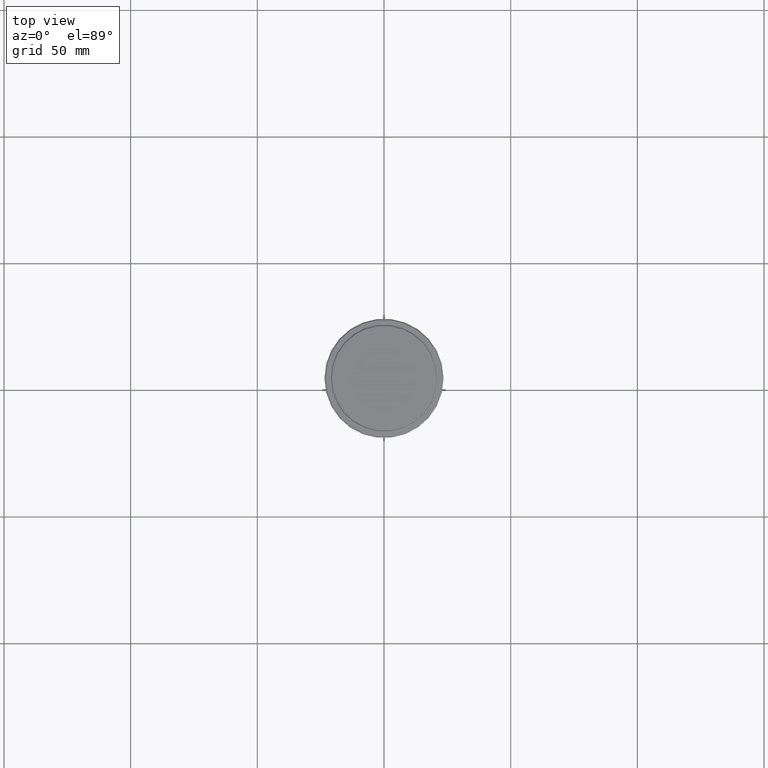
[diagram: clean part render]
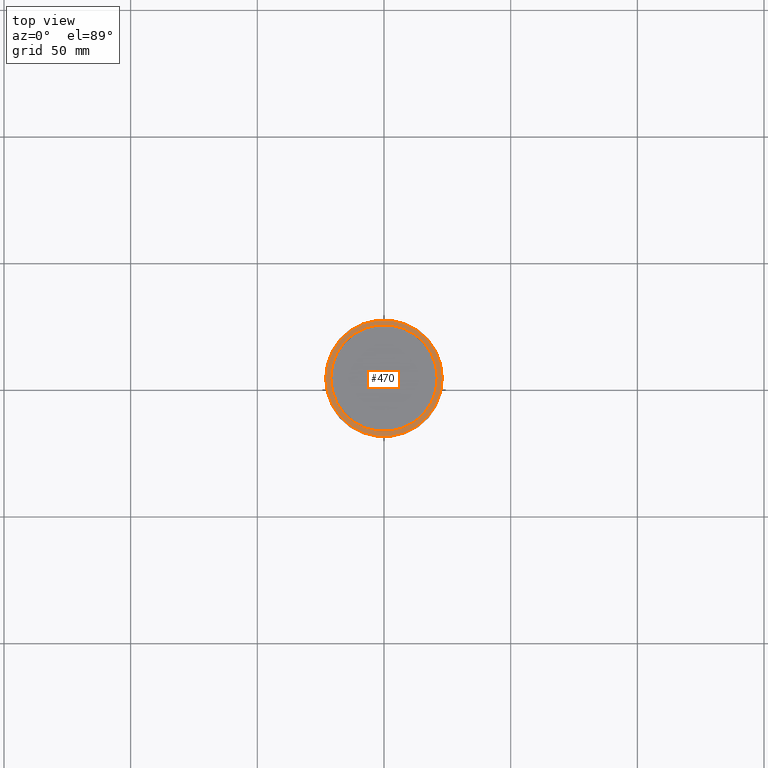
[diagram: same view with one face highlighted and labeled with its STEP entity id]
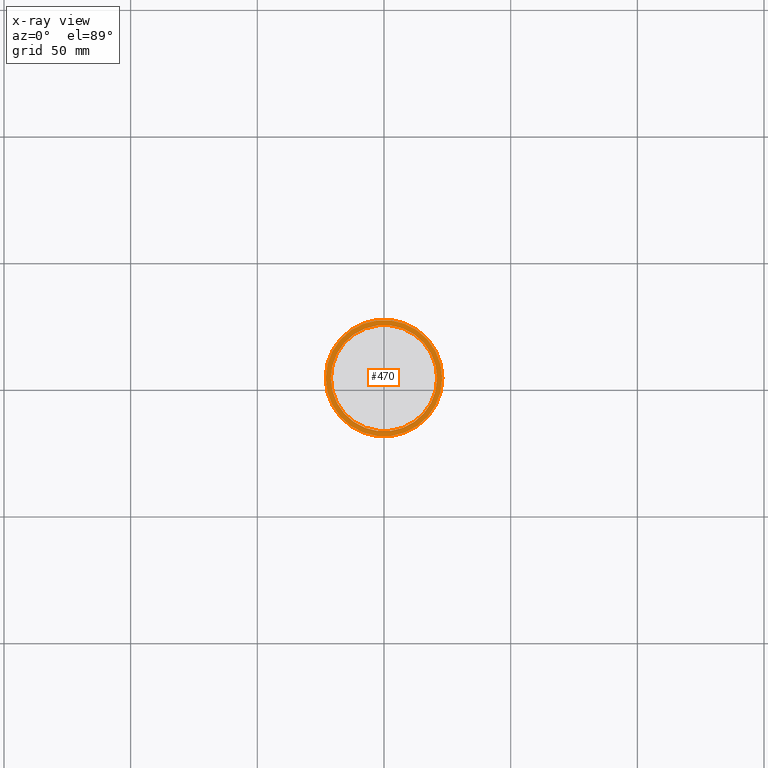
[diagram: x-ray of the same camera — body ghosted, the highlighted face saturated]
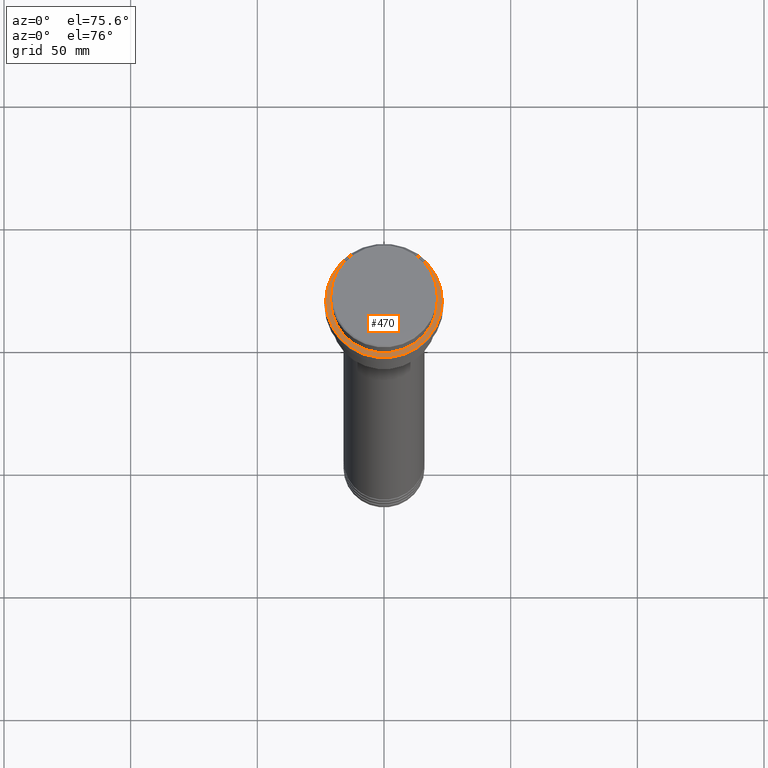
[diagram: same view with one face highlighted and labeled with its STEP entity id]
A machine part, top view. The second image highlights one B-rep face of the part: STEP entity #470.
The next image is the same camera in x-ray: the body ghosted, the highlighted face saturated — about 0% of this face is hidden behind the body in this view.
A second angle (auxiliary view) of the same face is appended — the face is thin or edge-on in the first view.
In plain terms, the highlighted planar face has unit normal (0, -0, 1).
Its self-contained STEP definition (entity closure, byte-faithful):
#122 = ORIENTED_EDGE ( 'NONE', *, *, #1272, .T. ) ;
#166 = AXIS2_PLACEMENT_3D ( 'NONE', #345, #573, #810 ) ;
#194 = EDGE_CURVE ( 'NONE', #213, #677, #306, .T. ) ;
#211 = FACE_OUTER_BOUND ( 'NONE', #1031, .T. ) ;
#213 = VERTEX_POINT ( 'NONE', #899 ) ;
#217 = CIRCLE ( 'NONE', #514, 20.99999999999999289 ) ;
#306 = CIRCLE ( 'NONE', #166, 20.99999999999999289 ) ;
#345 = CARTESIAN_POINT ( 'NONE',  ( 0.000000000000000000, 0.000000000000000000, -9.000000000000000000 ) ) ;
#463 = CARTESIAN_POINT ( 'NONE',  ( 0.000000000000000000, 20.49999999999999645, -9.000000000000000000 ) ) ;
#470 = ADVANCED_FACE ( 'NONE', ( #211, #884 ), #1193, .T. ) ;
#499 = CIRCLE ( 'NONE', #1336, 22.99999999999996803 ) ;
#502 = CARTESIAN_POINT ( 'NONE',  ( 0.000000000000000000, 0.000000000000000000, -9.000000000000000000 ) ) ;
#514 = AXIS2_PLACEMENT_3D ( 'NONE', #502, #944, #834 ) ;
#530 = ORIENTED_EDGE ( 'NONE', *, *, #1251, .T. ) ;
#539 = CARTESIAN_POINT ( 'NONE',  ( 0.000000000000000000, 0.000000000000000000, -9.000000000000000000 ) ) ;
#552 = DIRECTION ( 'NONE',  ( 1.000000000000000000, 0.000000000000000000, 0.000000000000000000 ) ) ;
#573 = DIRECTION ( 'NONE',  ( 0.000000000000000000, 0.000000000000000000, -1.000000000000000000 ) ) ;
#585 = CIRCLE ( 'NONE', #1401, 22.99999999999996803 ) ;
#677 = VERTEX_POINT ( 'NONE', #945 ) ;
#810 = DIRECTION ( 'NONE',  ( 1.000000000000000000, 0.000000000000000000, 0.000000000000000000 ) ) ;
#833 = ORIENTED_EDGE ( 'NONE', *, *, #194, .T. ) ;
#834 = DIRECTION ( 'NONE',  ( 1.000000000000000000, 0.000000000000000000, 0.000000000000000000 ) ) ;
#841 = DIRECTION ( 'NONE',  ( 1.000000000000000000, 0.000000000000000000, 0.000000000000000000 ) ) ;
#871 = DIRECTION ( 'NONE',  ( -0.000000000000000000, -0.000000000000000000, 1.000000000000000000 ) ) ;
#884 = FACE_BOUND ( 'NONE', #931, .T. ) ;
#899 = CARTESIAN_POINT ( 'NONE',  ( 20.99999999999999289, 0.000000000000000000, -9.000000000000000000 ) ) ;
#913 = ORIENTED_EDGE ( 'NONE', *, *, #1160, .T. ) ;
#914 = CARTESIAN_POINT ( 'NONE',  ( -22.99999999999996803, 0.000000000000000000, -9.000000000000000000 ) ) ;
#931 = EDGE_LOOP ( 'NONE', ( #833, #530 ) ) ;
#944 = DIRECTION ( 'NONE',  ( 0.000000000000000000, 0.000000000000000000, -1.000000000000000000 ) ) ;
#945 = CARTESIAN_POINT ( 'NONE',  ( -20.99999999999999289, 2.571758278209440872E-15, -9.000000000000000000 ) ) ;
#1009 = VERTEX_POINT ( 'NONE', #914 ) ;
#1014 = VERTEX_POINT ( 'NONE', #1136 ) ;
#1023 = AXIS2_PLACEMENT_3D ( 'NONE', #463, #1291, #552 ) ;
#1031 = EDGE_LOOP ( 'NONE', ( #122, #913 ) ) ;
#1136 = CARTESIAN_POINT ( 'NONE',  ( 22.99999999999996803, 2.847303808017594561E-15, -9.000000000000000000 ) ) ;
#1152 = CARTESIAN_POINT ( 'NONE',  ( 0.000000000000000000, 0.000000000000000000, -9.000000000000000000 ) ) ;
#1160 = EDGE_CURVE ( 'NONE', #1014, #1009, #499, .T. ) ;
#1169 = DIRECTION ( 'NONE',  ( -0.000000000000000000, -0.000000000000000000, 1.000000000000000000 ) ) ;
#1193 = PLANE ( 'NONE',  #1023 ) ;
#1251 = EDGE_CURVE ( 'NONE', #677, #213, #217, .T. ) ;
#1272 = EDGE_CURVE ( 'NONE', #1009, #1014, #585, .T. ) ;
#1291 = DIRECTION ( 'NONE',  ( 0.000000000000000000, -0.000000000000000000, 1.000000000000000000 ) ) ;
#1300 = DIRECTION ( 'NONE',  ( 1.000000000000000000, 0.000000000000000000, 0.000000000000000000 ) ) ;
#1336 = AXIS2_PLACEMENT_3D ( 'NONE', #1152, #1169, #841 ) ;
#1401 = AXIS2_PLACEMENT_3D ( 'NONE', #539, #871, #1300 ) ;